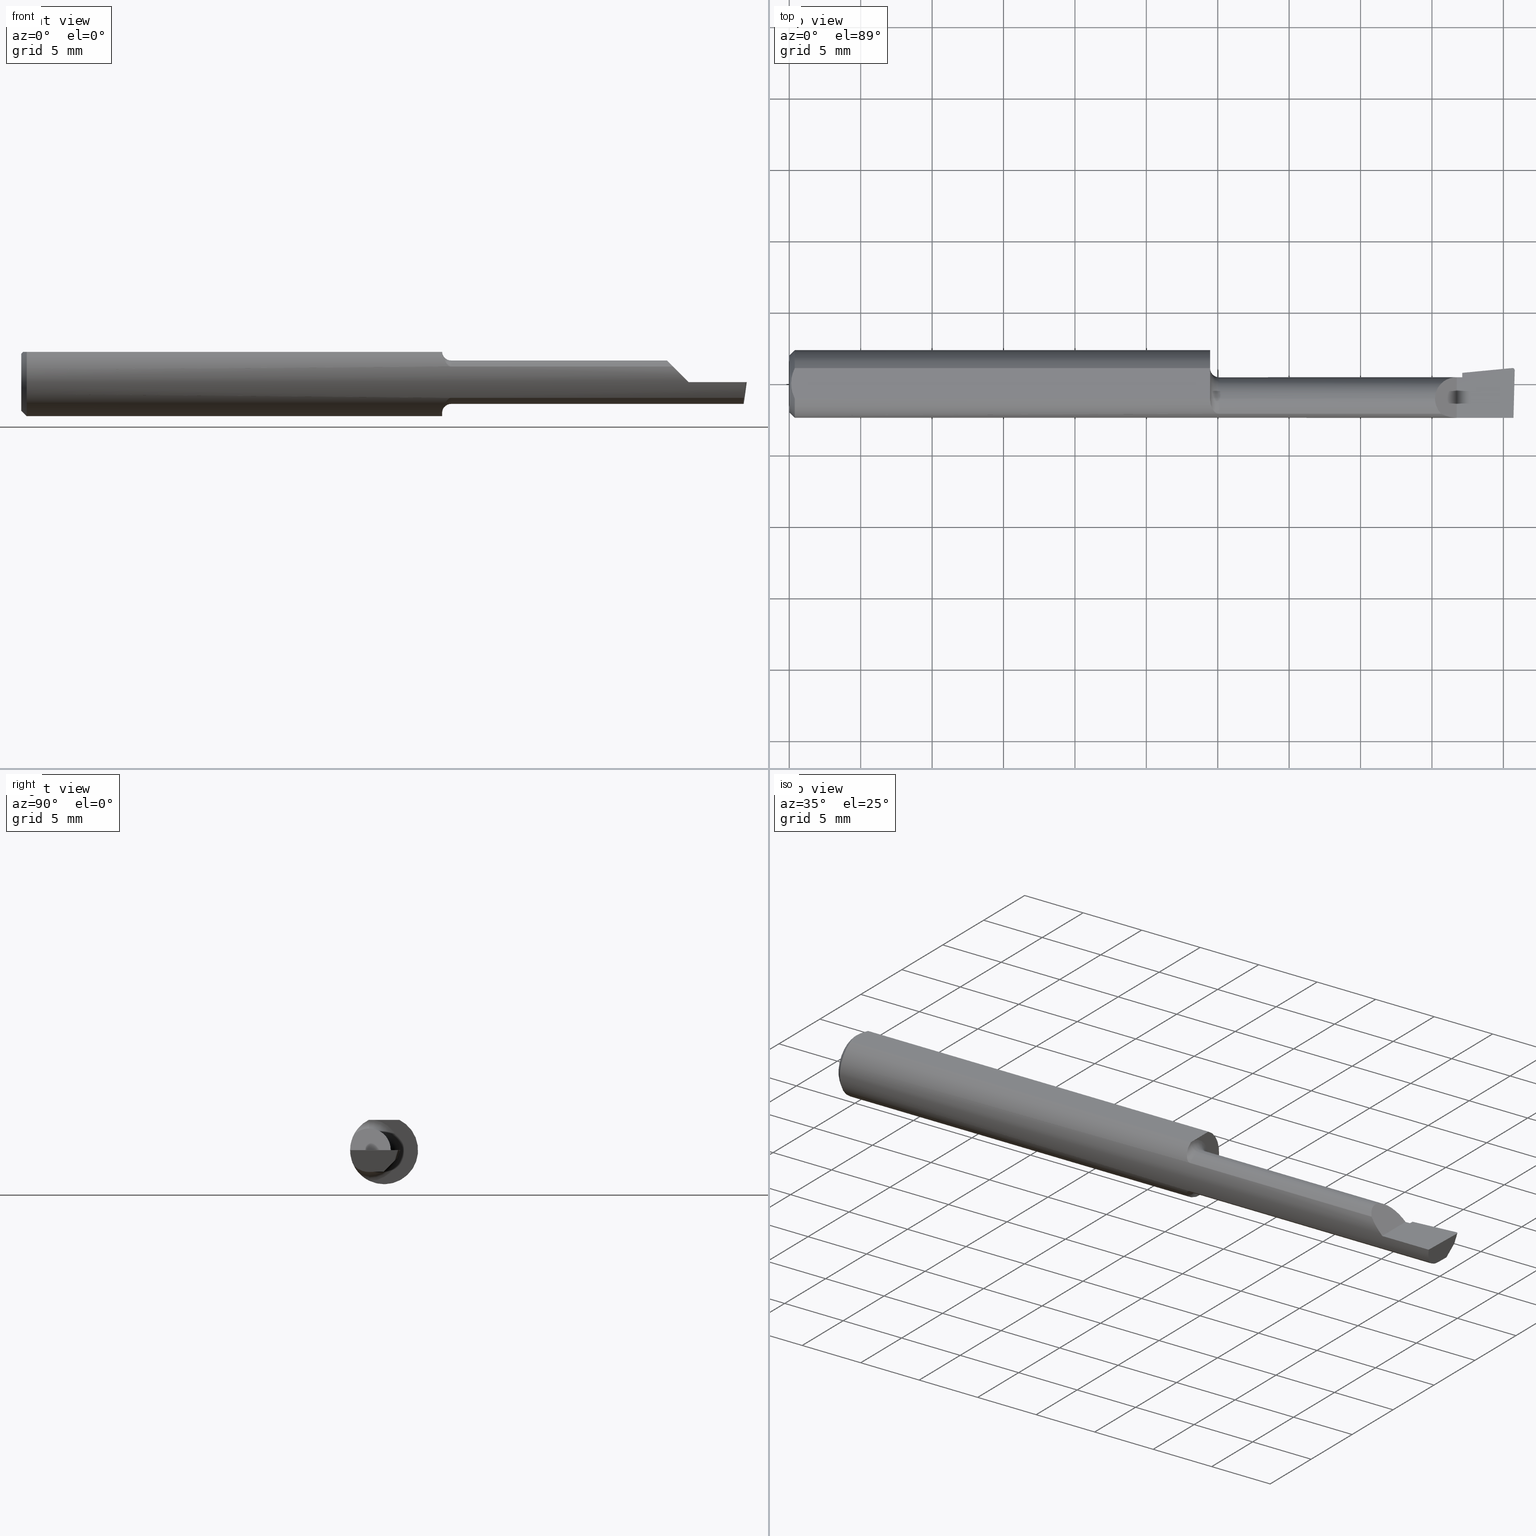
[diagram: canonical four-view strip — front | top / right | iso, engineering-drawing reading convention]
A machine part, canonical four-view strip (front | top / right | iso — engineering-drawing reading convention). The complete STEP part file that produces these views, byte-faithful:
ISO-10303-21;
HEADER;
FILE_DESCRIPTION (( 'STEP AP214' ),
    '1' );
FILE_NAME ('B140800R.STEP',
    '2020-05-08T22:41:23',
    ( '' ),
    ( '' ),
    'SwSTEP 2.0',
    'SolidWorks 2018',
    '' );
FILE_SCHEMA (( 'AUTOMOTIVE_DESIGN' ));
ENDSEC;

DATA;
#1 = CARTESIAN_POINT ( 'NONE',  ( 1.160121283746728515, -0.04659318327468391085, -0.08137765652544186323 ) ) ;
#2 = DIRECTION ( 'NONE',  ( 1.000000000000000000, 0.0000000000000000000, 0.0000000000000000000 ) ) ;
#3 = ORIENTED_EDGE ( 'NONE', *, *, #16, .F. ) ;
#4 = CARTESIAN_POINT ( 'NONE',  ( 1.160020127471513174, -0.04150000000000000216, -0.08389702020930184245 ) ) ;
#5 = CARTESIAN_POINT ( 'NONE',  ( 0.005000000000000236026, 1.025183009042025117E-17, 0.08360000000000000764 ) ) ;
#6 = AXIS2_PLACEMENT_3D ( 'NONE', #649, #427, #187 ) ;
#7 = DIRECTION ( 'NONE',  ( 0.0000000000000000000, 0.0000000000000000000, -1.000000000000000000 ) ) ;
#8 = ORIENTED_EDGE ( 'NONE', *, *, #477, .T. ) ;
#9 = ORIENTED_EDGE ( 'NONE', *, *, #90, .F. ) ;
#10 = ORIENTED_EDGE ( 'NONE', *, *, #156, .F. ) ;
#11 = EDGE_CURVE ( 'NONE', #172, #718, #533, .T. ) ;
#12 = FACE_OUTER_BOUND ( 'NONE', #637, .T. ) ;
#13 = AXIS2_PLACEMENT_3D ( 'NONE', #590, #203, #31 ) ;
#14 =( BOUNDED_CURVE ( )  B_SPLINE_CURVE ( 3, ( #478, #88, #730, #373 ),
 .UNSPECIFIED., .F., .T. ) 
 B_SPLINE_CURVE_WITH_KNOTS ( ( 4, 4 ),
 ( 3.156599629463105572, 4.715023529952367731 ),
 .UNSPECIFIED. ) 
 CURVE ( )  GEOMETRIC_REPRESENTATION_ITEM ( )  RATIONAL_B_SPLINE_CURVE ( ( 1.000000000000000000, 0.8076450242550399228, 0.8076450242550399228, 1.000000000000000000 ) ) 
 REPRESENTATION_ITEM ( '' )  );
#15 = CARTESIAN_POINT ( 'NONE',  ( 1.169277238843646760, -0.07518688180277835476, 0.05595855205935822835 ) ) ;
#16 = EDGE_CURVE ( 'NONE', #535, #49, #80, .T. ) ;
#17 = CARTESIAN_POINT ( 'NONE',  ( 1.173723886093771984, -0.07921817987516428794, 0.04991299092638442486 ) ) ;
#18 = CARTESIAN_POINT ( 'NONE',  ( 0.01499999999999999598, 0.0000000000000000000, -0.09360000000000001652 ) ) ;
#19 = ORIENTED_EDGE ( 'NONE', *, *, #391, .F. ) ;
#20 = EDGE_LOOP ( 'NONE', ( #3, #385, #159, #668, #473 ) ) ;
#21 = ORIENTED_EDGE ( 'NONE', *, *, #577, .F. ) ;
#22 = CARTESIAN_POINT ( 'NONE',  ( 1.175413575230843666, -0.08042664989327168168, 0.04791921015131045403 ) ) ;
#23 = CARTESIAN_POINT ( 'NONE',  ( 1.162429122971394557, -0.06066239981301110168, 0.07149394324226560071 ) ) ;
#24 = DIRECTION ( 'NONE',  ( 0.0000000000000000000, 1.000000000000000000, -1.189000693621284344E-16 ) ) ;
#25 = CARTESIAN_POINT ( 'NONE',  ( 1.163721006865968688, -0.06478644025721981559, 0.06776242552087052839 ) ) ;
#26 = DIMENSIONAL_EXPONENTS ( 1.000000000000000000, 0.0000000000000000000, 0.0000000000000000000, 0.0000000000000000000, 0.0000000000000000000, 0.0000000000000000000, 0.0000000000000000000 ) ;
#27 = CARTESIAN_POINT ( 'NONE',  ( 1.167169981118042932, -0.07201923175909119568, 0.06001882546754930964 ) ) ;
#28 = DIRECTION ( 'NONE',  ( 0.1219104985252699447, 0.0000000000000000000, 0.9925410975618692566 ) ) ;
#29 = CYLINDRICAL_SURFACE ( 'NONE', #70, 0.006499999999999999702 ) ;
#30 = VECTOR ( 'NONE', #445, 39.37007874015748143 ) ;
#31 = DIRECTION ( 'NONE',  ( 0.0000000000000000000, 0.0000000000000000000, 1.000000000000000000 ) ) ;
#32 = CARTESIAN_POINT ( 'NONE',  ( 1.990282674007080033, 0.03732143363315359313, -0.02000000000000000042 ) ) ;
#33 = PLANE ( 'NONE',  #383 ) ;
#34 = AXIS2_PLACEMENT_3D ( 'NONE', #606, #551, #77 ) ;
#35 = DIRECTION ( 'NONE',  ( -0.9922060308645497262, 0.02598182930468411270, 0.1218693434051345836 ) ) ;
#36 = EDGE_LOOP ( 'NONE', ( #212, #106, #322, #19 ) ) ;
#37 = CARTESIAN_POINT ( 'NONE',  ( 1.992906680581892465, 0.04371699102466924253, -6.439972649628884200E-17 ) ) ;
#38 = ORIENTED_EDGE ( 'NONE', *, *, #181, .T. ) ;
#39 =( NAMED_UNIT ( * ) SI_UNIT ( $, .STERADIAN. ) SOLID_ANGLE_UNIT ( ) );
#40 = ORIENTED_EDGE ( 'NONE', *, *, #11, .T. ) ;
#41 = CARTESIAN_POINT ( 'NONE',  ( 1.160033822879743992, -0.03903342675892667452, 0.08360000000000000764 ) ) ;
#42 = DIRECTION ( 'NONE',  ( -1.000000000000000000, -0.0000000000000000000, -0.0000000000000000000 ) ) ;
#43 = DIRECTION ( 'NONE',  ( 0.0000000000000000000, 0.0000000000000000000, -1.000000000000000000 ) ) ;
#44 = VECTOR ( 'NONE', #457, 39.37007874015748143 ) ;
#45 = DIRECTION ( 'NONE',  ( 1.000000000000000000, 0.0000000000000000000, 0.0000000000000000000 ) ) ;
#46 = EDGE_CURVE ( 'NONE', #476, #238, #648, .T. ) ;
#47 = CIRCLE ( 'NONE', #177, 0.08489999999999991998 ) ;
#48 = DIRECTION ( 'NONE',  ( 0.0000000000000000000, 0.0000000000000000000, 1.000000000000000000 ) ) ;
#49 = VERTEX_POINT ( 'NONE', #5 ) ;
#50 = VERTEX_POINT ( 'NONE', #167 ) ;
#51 = VECTOR ( 'NONE', #712, 39.37007874015748143 ) ;
#52 = AXIS2_PLACEMENT_3D ( 'NONE', #146, #628, #714 ) ;
#53 = CARTESIAN_POINT ( 'NONE',  ( 1.993512870449313912, 0.04374616680637214566, -7.256471233170699482E-17 ) ) ;
#54 = ORIENTED_EDGE ( 'NONE', *, *, #388, .F. ) ;
#55 = CARTESIAN_POINT ( 'NONE',  ( 1.993108609909222784, 0.04373643460740115479, -6.821681774272507613E-17 ) ) ;
#56 = EDGE_LOOP ( 'NONE', ( #596, #72, #727, #336, #327, #140 ) ) ;
#57 = CARTESIAN_POINT ( 'NONE',  ( 0.01499999999999999598, 0.0000000000000000000, 0.0000000000000000000 ) ) ;
#58 = ORIENTED_EDGE ( 'NONE', *, *, #435, .F. ) ;
#59 = VERTEX_POINT ( 'NONE', #249 ) ;
#60 = EDGE_CURVE ( 'NONE', #284, #654, #456, .T. ) ;
#61 = DIRECTION ( 'NONE',  ( 0.0000000000000000000, 0.0000000000000000000, 1.000000000000000000 ) ) ;
#62 = DIRECTION ( 'NONE',  ( 1.000000000000000000, 0.0000000000000000000, 0.0000000000000000000 ) ) ;
#63 = EDGE_LOOP ( 'NONE', ( #368, #709, #679, #693, #301, #582, #646 ) ) ;
#64 = VECTOR ( 'NONE', #485, 39.37007874015748143 ) ;
#65 = ORIENTED_EDGE ( 'NONE', *, *, #439, .T. ) ;
#66 = CARTESIAN_POINT ( 'NONE',  ( 1.854999999999999982, -0.04150000000000000216, 0.0000000000000000000 ) ) ;
#67 = CARTESIAN_POINT ( 'NONE',  ( 1.160000000000000142, -0.03946024096385560009, -0.08487549341873927566 ) ) ;
#68 = ORIENTED_EDGE ( 'NONE', *, *, #73, .T. ) ;
#69 = ORIENTED_EDGE ( 'NONE', *, *, #271, .T. ) ;
#70 = AXIS2_PLACEMENT_3D ( 'NONE', #295, #536, #497 ) ;
#71 =( NAMED_UNIT ( * ) PLANE_ANGLE_UNIT ( ) SI_UNIT ( $, .RADIAN. ) );
#72 = ORIENTED_EDGE ( 'NONE', *, *, #540, .T. ) ;
#73 = EDGE_CURVE ( 'NONE', #535, #594, #697, .T. ) ;
#74 = CARTESIAN_POINT ( 'NONE',  ( 5.659797890829555466E-31, -0.09359999999999998876, 1.030335658007946046E-15 ) ) ;
#75 = VERTEX_POINT ( 'NONE', #37 ) ;
#76 = CARTESIAN_POINT ( 'NONE',  ( 1.995722974169268138, 0.02705373335152997522, -0.03112352112763103890 ) ) ;
#77 = DIRECTION ( 'NONE',  ( 0.0000000000000000000, 0.0000000000000000000, 1.000000000000000000 ) ) ;
#78 = CARTESIAN_POINT ( 'NONE',  ( 1.988104162047463319, -0.07253870183878466382, -0.07191998023054102518 ) ) ;
#79 = VECTOR ( 'NONE', #516, 39.37007874015748143 ) ;
#80 = LINE ( 'NONE', #89, #698 ) ;
#81 = SURFACE_STYLE_USAGE ( .BOTH. , #618 ) ;
#82 =( CONVERSION_BASED_UNIT ( 'INCH', #512 ) LENGTH_UNIT ( ) NAMED_UNIT ( #26 ) );
#83 = AXIS2_PLACEMENT_3D ( 'NONE', #353, #346, #43 ) ;
#84 = PLANE ( 'NONE',  #715 ) ;
#85 = PRODUCT ( 'B140800R', 'B140800R', '', ( #424 ) ) ;
#86 = DIRECTION ( 'NONE',  ( -0.7071067811865433539, 0.0000000000000000000, -0.7071067811865516806 ) ) ;
#87 =( CONVERSION_BASED_UNIT ( 'INCH', #132 ) LENGTH_UNIT ( ) NAMED_UNIT ( #603 ) );
#88 = CARTESIAN_POINT ( 'NONE',  ( 1.994610376530254747, 0.03716006620332604204, -0.02059586115756896138 ) ) ;
#89 = CARTESIAN_POINT ( 'NONE',  ( 0.01499999999999999598, 1.146269404001922775E-17, 0.09360000000000001652 ) ) ;
#90 = EDGE_CURVE ( 'NONE', #729, #519, #653, .T. ) ;
#91 = CARTESIAN_POINT ( 'NONE',  ( 1.991365359011875169, -0.08307469879518081246, -0.04312255117789283443 ) ) ;
#92 = CARTESIAN_POINT ( 'NONE',  ( 1.840000000000000080, -0.2500000000000000555, 1.959434878635762025E-17 ) ) ;
#93 =( NAMED_UNIT ( * ) SI_UNIT ( $, .STERADIAN. ) SOLID_ANGLE_UNIT ( ) );
#94 = ORIENTED_EDGE ( 'NONE', *, *, #642, .F. ) ;
#95 = DIRECTION ( 'NONE',  ( 0.0000000000000000000, 0.0000000000000000000, 1.000000000000000000 ) ) ;
#96 = LINE ( 'NONE', #200, #30 ) ;
#97 = LINE ( 'NONE', #370, #79 ) ;
#98 = CARTESIAN_POINT ( 'NONE',  ( 1.520000000000000240, -0.08307469879518081246, 0.04312255117789283443 ) ) ;
#99 = CARTESIAN_POINT ( 'NONE',  ( 0.01499999999999999944, -0.04209513035969835587, 0.08360000000000000764 ) ) ;
#100 = AXIS2_PLACEMENT_3D ( 'NONE', #362, #481, #229 ) ;
#101 = CARTESIAN_POINT ( 'NONE',  ( 1.993310817358676212, 0.04374616680637213179, -6.832789351565719796E-17 ) ) ;
#102 = LENGTH_MEASURE_WITH_UNIT ( LENGTH_MEASURE( 0.02539999999999999897 ), #548 );
#103 = FACE_OUTER_BOUND ( 'NONE', #349, .T. ) ;
#104 = AXIS2_PLACEMENT_3D ( 'NONE', #571, #517, #274 ) ;
#105 = ORIENTED_EDGE ( 'NONE', *, *, #453, .T. ) ;
#106 = ORIENTED_EDGE ( 'NONE', *, *, #375, .F. ) ;
#107 = EDGE_CURVE ( 'NONE', #286, #59, #553, .T. ) ;
#108 = CARTESIAN_POINT ( 'NONE',  ( 1.185000000000000053, -0.08307469879518070144, -0.04312255117789289688 ) ) ;
#109 = B_SPLINE_CURVE_WITH_KNOTS ( 'NONE', 3,
 ( #431, #308, #626, #570, #573, #444 ),
 .UNSPECIFIED., .F., .F.,
 ( 4, 2, 4 ),
 ( 0.005785415439423114564, 0.006333348270144337384, 0.006881281100865560205 ),
 .UNSPECIFIED. ) ;
#110 = CARTESIAN_POINT ( 'NONE',  ( 2.000000000000000000, -0.04150000000000000216, -0.05990000000000000185 ) ) ;
#111 = CLOSED_SHELL ( 'NONE', ( #662, #479, #659, #720, #493, #280, #532, #425, #557, #345, #609, #334, #463, #670, #405, #549, #126, #430, #468, #472, #537 ) ) ;
#112 = AXIS2_PLACEMENT_3D ( 'NONE', #234, #565, #657 ) ;
#113 = ORIENTED_EDGE ( 'NONE', *, *, #524, .T. ) ;
#114 = CARTESIAN_POINT ( 'NONE',  ( 1.160033822879743992, -0.04150000000000000216, 0.08360000000000000764 ) ) ;
#115 = EDGE_CURVE ( 'NONE', #49, #231, #531, .T. ) ;
#116 = VECTOR ( 'NONE', #461, 39.37007874015748143 ) ;
#117 = VERTEX_POINT ( 'NONE', #619 ) ;
#118 = EDGE_CURVE ( 'NONE', #231, #527, #681, .T. ) ;
#119 = PLANE ( 'NONE',  #100 ) ;
#120 = PLANE ( 'NONE',  #488 ) ;
#121 = ORIENTED_EDGE ( 'NONE', *, *, #194, .F. ) ;
#122 = ORIENTED_EDGE ( 'NONE', *, *, #115, .T. ) ;
#123 = ORIENTED_EDGE ( 'NONE', *, *, #73, .F. ) ;
#124 = DIRECTION ( 'NONE',  ( -1.000000000000000000, -0.0000000000000000000, -0.0000000000000000000 ) ) ;
#125 = CARTESIAN_POINT ( 'NONE',  ( 1.182123707331576901, -0.08307469879541805324, 0.04312255117743588051 ) ) ;
#126 = ADVANCED_FACE ( 'NONE', ( #623 ), #316, .F. ) ;
#127 = DIRECTION ( 'NONE',  ( -1.000000000000000000, -0.0000000000000000000, -0.0000000000000000000 ) ) ;
#128 = STYLED_ITEM ( 'NONE', ( #543 ), #406 ) ;
#129 = ORIENTED_EDGE ( 'NONE', *, *, #495, .F. ) ;
#130 = DIRECTION ( 'NONE',  ( -1.000000000000000000, -0.0000000000000000000, -0.0000000000000000000 ) ) ;
#131 = VERTEX_POINT ( 'NONE', #147 ) ;
#132 = LENGTH_MEASURE_WITH_UNIT ( LENGTH_MEASURE( 0.02539999999999999897 ), #666 );
#133 = DIRECTION ( 'NONE',  ( 0.1240019227989196809, 0.3022330132596642849, 0.9451342385281332747 ) ) ;
#134 = CARTESIAN_POINT ( 'NONE',  ( 1.780099999999999349, -0.04150000000000000216, 0.05989999999999996022 ) ) ;
#135 = CARTESIAN_POINT ( 'NONE',  ( 1.163605992736884476, -0.06448586599545322318, -0.06805619079784644421 ) ) ;
#136 = CARTESIAN_POINT ( 'NONE',  ( 1.992827658777091893, -0.09002356847881788637, -0.02973569812382164182 ) ) ;
#137 =( GEOMETRIC_REPRESENTATION_CONTEXT ( 3 ) GLOBAL_UNCERTAINTY_ASSIGNED_CONTEXT ( ( #576 ) ) GLOBAL_UNIT_ASSIGNED_CONTEXT ( ( #82, #71, #39 ) ) REPRESENTATION_CONTEXT ( 'NONE', 'WORKASPACE' ) );
#138 = DIRECTION ( 'NONE',  ( 0.0000000000000000000, -0.2936076258024065688, -0.9559260233253794592 ) ) ;
#139 = DIRECTION ( 'NONE',  ( 0.7071067811865391350, 8.659560562355035164E-17, 0.7071067811865558994 ) ) ;
#140 = ORIENTED_EDGE ( 'NONE', *, *, #410, .T. ) ;
#141 = EDGE_LOOP ( 'NONE', ( #94, #54, #220, #272 ) ) ;
#142 = ORIENTED_EDGE ( 'NONE', *, *, #304, .T. ) ;
#143 = CARTESIAN_POINT ( 'NONE',  ( 0.0000000000000000000, -0.04150000000000000216, 0.05989999999999996022 ) ) ;
#144 = ORIENTED_EDGE ( 'NONE', *, *, #410, .F. ) ;
#145 = AXIS2_PLACEMENT_3D ( 'NONE', #192, #392, #45 ) ;
#146 = CARTESIAN_POINT ( 'NONE',  ( 0.0000000000000000000, -0.04150000000000000216, 0.0000000000000000000 ) ) ;
#147 = CARTESIAN_POINT ( 'NONE',  ( 1.996386342823452065, -0.09360000000000009979, -6.634435288474564624E-17 ) ) ;
#148 = EDGE_CURVE ( 'NONE', #323, #49, #109, .T. ) ;
#149 = FACE_OUTER_BOUND ( 'NONE', #699, .T. ) ;
#150 = CARTESIAN_POINT ( 'NONE',  ( 1.185000000000000053, -0.04150000000000000216, 0.05989999999999991859 ) ) ;
#151 = DIRECTION ( 'NONE',  ( 0.0000000000000000000, 0.0000000000000000000, 1.000000000000000000 ) ) ;
#152 = ORIENTED_EDGE ( 'NONE', *, *, #309, .F. ) ;
#153 = LINE ( 'NONE', #143, #64 ) ;
#154 = CARTESIAN_POINT ( 'NONE',  ( 1.182100790213033825, -0.08307469879518074307, -0.04312255117789293851 ) ) ;
#155 = DIRECTION ( 'NONE',  ( -0.1240019227989196809, -0.3022330132596642849, -0.9451342385281332747 ) ) ;
#156 = EDGE_CURVE ( 'NONE', #117, #75, #97, .T. ) ;
#157 = CARTESIAN_POINT ( 'NONE',  ( 1.990707973439665102, 0.03690972059671232541, -0.02137873461577839695 ) ) ;
#158 = CARTESIAN_POINT ( 'NONE',  ( 1.804911392386147506, 0.01839999999999995459, 0.03508860761385158150 ) ) ;
#159 = ORIENTED_EDGE ( 'NONE', *, *, #640, .T. ) ;
#160 = EDGE_CURVE ( 'NONE', #283, #164, #178, .T. ) ;
#161 = ORIENTED_EDGE ( 'NONE', *, *, #419, .F. ) ;
#162 = VERTEX_POINT ( 'NONE', #366 ) ;
#163 = CARTESIAN_POINT ( 'NONE',  ( 0.005000000000000223883, 0.007308422719211823959, 0.08360000000000000764 ) ) ;
#164 = VERTEX_POINT ( 'NONE', #361 ) ;
#165 = LINE ( 'NONE', #182, #354 ) ;
#166 = CIRCLE ( 'NONE', #216, 0.05989999999999991859 ) ;
#167 = CARTESIAN_POINT ( 'NONE',  ( 1.840000000000000080, 0.01839999999999986438, 1.959434878635762025E-17 ) ) ;
#168 = AXIS2_PLACEMENT_3D ( 'NONE', #656, #258, #412 ) ;
#169 = CARTESIAN_POINT ( 'NONE',  ( 0.005000000000000236026, 1.025183009042025117E-17, 0.08360000000000000764 ) ) ;
#170 = DIRECTION ( 'NONE',  ( 0.0000000000000000000, 0.0000000000000000000, 1.000000000000000000 ) ) ;
#171 = AXIS2_PLACEMENT_3D ( 'NONE', #669, #436, #170 ) ;
#172 = VERTEX_POINT ( 'NONE', #446 ) ;
#173 = ORIENTED_EDGE ( 'NONE', *, *, #640, .F. ) ;
#174 = ORIENTED_EDGE ( 'NONE', *, *, #291, .T. ) ;
#175 = CARTESIAN_POINT ( 'NONE',  ( 1.185000000000000053, -0.08307469879518036837, 0.04312255117789319525 ) ) ;
#176 = PLANE ( 'NONE',  #647 ) ;
#177 = AXIS2_PLACEMENT_3D ( 'NONE', #643, #513, #607 ) ;
#178 = LINE ( 'NONE', #380, #420 ) ;
#179 = DIRECTION ( 'NONE',  ( 0.0000000000000000000, 0.9524855432518773979, -0.3045837978228257970 ) ) ;
#180 = FACE_OUTER_BOUND ( 'NONE', #433, .T. ) ;
#181 = EDGE_CURVE ( 'NONE', #729, #284, #400, .T. ) ;
#182 = CARTESIAN_POINT ( 'NONE',  ( 0.01499999999999999598, 0.0000000000000000000, -0.09360000000000001652 ) ) ;
#183 = DIRECTION ( 'NONE',  ( 0.0000000000000000000, 1.000000000000000000, 0.0000000000000000000 ) ) ;
#184 = ORIENTED_EDGE ( 'NONE', *, *, #267, .F. ) ;
#185 = CARTESIAN_POINT ( 'NONE',  ( 1.160033712670299977, -0.04209513036081732190, 0.08360000000000000764 ) ) ;
#186 = VERTEX_POINT ( 'NONE', #150 ) ;
#187 = DIRECTION ( 'NONE',  ( 0.0000000000000000000, 0.0000000000000000000, -1.000000000000000000 ) ) ;
#188 = DIMENSIONAL_EXPONENTS ( 1.000000000000000000, 0.0000000000000000000, 0.0000000000000000000, 0.0000000000000000000, 0.0000000000000000000, 0.0000000000000000000, 0.0000000000000000000 ) ;
#189 =( BOUNDED_CURVE ( )  B_SPLINE_CURVE ( 3, ( #357, #292, #423, #378 ),
 .UNSPECIFIED., .F., .T. ) 
 B_SPLINE_CURVE_WITH_KNOTS ( ( 4, 4 ),
 ( 1.953092279228458183, 3.511516179717707686 ),
 .UNSPECIFIED. ) 
 CURVE ( )  GEOMETRIC_REPRESENTATION_ITEM ( )  RATIONAL_B_SPLINE_CURVE ( ( 1.000000000000000000, 0.8076450242550429204, 0.8076450242550429204, 1.000000000000000000 ) ) 
 REPRESENTATION_ITEM ( '' )  );
#190 = AXIS2_PLACEMENT_3D ( 'NONE', #256, #253, #193 ) ;
#191 = DIRECTION ( 'NONE',  ( -0.1240019227989196671, -0.3022330132596642849, -0.9451342385281333858 ) ) ;
#192 = CARTESIAN_POINT ( 'NONE',  ( 2.000000000000000000, -0.04150000000000000216, -0.05990000000000000185 ) ) ;
#193 = DIRECTION ( 'NONE',  ( 0.0000000000000000000, 0.0000000000000000000, 1.000000000000000000 ) ) ;
#194 = EDGE_CURVE ( 'NONE', #186, #162, #255, .T. ) ;
#195 = ORIENTED_EDGE ( 'NONE', *, *, #523, .T. ) ;
#196 = CARTESIAN_POINT ( 'NONE',  ( 1.167076397983111580, -0.07187891021191479546, -0.06019546731975692483 ) ) ;
#197 = EDGE_CURVE ( 'NONE', #238, #610, #47, .T. ) ;
#198 = DIRECTION ( 'NONE',  ( 0.0000000000000000000, 0.0000000000000000000, 1.000000000000000000 ) ) ;
#199 = CARTESIAN_POINT ( 'NONE',  ( 0.0000000000000000000, -0.04209513035969835587, 0.08360000000000000764 ) ) ;
#200 = CARTESIAN_POINT ( 'NONE',  ( 0.0000000000000000000, 0.04209513035969837669, 0.08360000000000000764 ) ) ;
#201 = CARTESIAN_POINT ( 'NONE',  ( 0.005981829149300850468, 0.01454044632356567279, 0.08360000000000000764 ) ) ;
#202 = ORIENTED_EDGE ( 'NONE', *, *, #540, .F. ) ;
#203 = DIRECTION ( 'NONE',  ( -0.0000000000000000000, 1.000000000000000000, 1.224646799147353207E-16 ) ) ;
#204 = CARTESIAN_POINT ( 'NONE',  ( 0.009492654797564337166, 0.02859466010166625619, 0.08359999999999997988 ) ) ;
#205 = PRESENTATION_LAYER_ASSIGNMENT (  '', '', ( #128 ) ) ;
#206 = CARTESIAN_POINT ( 'NONE',  ( 1.179498465877714120, -0.08233174416856384181, -0.04456779206614402966 ) ) ;
#207 = CARTESIAN_POINT ( 'NONE',  ( 1.840000000000000080, -0.09360000000000005815, 1.959434878635762025E-17 ) ) ;
#208 = CARTESIAN_POINT ( 'NONE',  ( 0.01203648650249650523, 0.03550565407121123590, 0.08360000000000000764 ) ) ;
#209 = CARTESIAN_POINT ( 'NONE',  ( 1.846299648997745013, 0.02345744519840431766, -0.02000000000000000042 ) ) ;
#210 = EDGE_LOOP ( 'NONE', ( #360, #711, #9, #38, #614 ) ) ;
#211 = ORIENTED_EDGE ( 'NONE', *, *, #388, .T. ) ;
#212 = ORIENTED_EDGE ( 'NONE', *, *, #107, .F. ) ;
#213 = CARTESIAN_POINT ( 'NONE',  ( 0.01499999999999999598, 0.04209513035969837669, 0.08360000000000000764 ) ) ;
#214 = CARTESIAN_POINT ( 'NONE',  ( 1.992906680581892465, 0.04371699102466924253, -6.439972649628884200E-17 ) ) ;
#215 = LINE ( 'NONE', #209, #242 ) ;
#216 = AXIS2_PLACEMENT_3D ( 'NONE', #563, #629, #151 ) ;
#217 = DIRECTION ( 'NONE',  ( 0.0000000000000000000, -1.000000000000000000, 1.189000693621284344E-16 ) ) ;
#218 = EDGE_CURVE ( 'NONE', #162, #284, #166, .T. ) ;
#219 = FACE_OUTER_BOUND ( 'NONE', #227, .T. ) ;
#220 = ORIENTED_EDGE ( 'NONE', *, *, #435, .T. ) ;
#221 = AXIS2_PLACEMENT_3D ( 'NONE', #296, #191, #179 ) ;
#222 = CARTESIAN_POINT ( 'NONE',  ( 1.796877448822106649, -0.08307469879518082634, 0.04312255117789279973 ) ) ;
#223 = EDGE_CURVE ( 'NONE', #75, #547, #314, .T. ) ;
#224 = EDGE_CURVE ( 'NONE', #50, #440, #724, .T. ) ;
#225 = FILL_AREA_STYLE_COLOUR ( '', #631 ) ;
#226 = LINE ( 'NONE', #443, #382 ) ;
#227 = EDGE_LOOP ( 'NONE', ( #252, #195, #508 ) ) ;
#228 = FACE_OUTER_BOUND ( 'NONE', #20, .T. ) ;
#229 = DIRECTION ( 'NONE',  ( 0.0000000000000000000, 0.0000000000000000000, -1.000000000000000000 ) ) ;
#230 = CARTESIAN_POINT ( 'NONE',  ( 0.0000000000000000000, 1.054420894065869177E-17, 0.07859999999999965625 ) ) ;
#231 = VERTEX_POINT ( 'NONE', #636 ) ;
#232 = VECTOR ( 'NONE', #297, 39.37007874015748143 ) ;
#233 = CARTESIAN_POINT ( 'NONE',  ( 1.845713589253086706, 0.02954390835936730741, -6.829619984160658046E-17 ) ) ;
#234 = CARTESIAN_POINT ( 'NONE',  ( 0.0000000000000000000, 0.0000000000000000000, 0.0000000000000000000 ) ) ;
#235 = MECHANICAL_DESIGN_GEOMETRIC_PRESENTATION_REPRESENTATION (  '', ( #128 ), #276 ) ;
#236 = CARTESIAN_POINT ( 'NONE',  ( 1.840000000000000080, -0.09360000000000005815, 1.959434878635762025E-17 ) ) ;
#237 =( BOUNDED_CURVE ( )  B_SPLINE_CURVE ( 3, ( #365, #489, #414, #494 ),
 .UNSPECIFIED., .F., .T. ) 
 B_SPLINE_CURVE_WITH_KNOTS ( ( 4, 4 ),
 ( 3.064097098354582549, 3.156599629463105572 ),
 .UNSPECIFIED. ) 
 CURVE ( )  GEOMETRIC_REPRESENTATION_ITEM ( )  RATIONAL_B_SPLINE_CURVE ( ( 1.000000000000000000, 0.9992870672494019724, 0.9992870672494019724, 1.000000000000000000 ) ) 
 REPRESENTATION_ITEM ( '' )  );
#238 = VERTEX_POINT ( 'NONE', #331 ) ;
#239 = CARTESIAN_POINT ( 'NONE',  ( 0.0000000000000000000, 0.0000000000000000000, -0.07859999999999965625 ) ) ;
#240 = SHAPE_DEFINITION_REPRESENTATION ( #376, #684 ) ;
#241 = DIRECTION ( 'NONE',  ( 0.0000000000000000000, -1.189000693621284344E-16, -1.000000000000000000 ) ) ;
#242 = VECTOR ( 'NONE', #266, 39.37007874015748854 ) ;
#243 = SURFACE_SIDE_STYLE ('',( #466 ) ) ;
#244 = STYLED_ITEM ( 'NONE', ( #299 ), #684 ) ;
#245 = FILL_AREA_STYLE ('',( #315 ) ) ;
#246 = FACE_OUTER_BOUND ( 'NONE', #471, .T. ) ;
#247 = CARTESIAN_POINT ( 'NONE',  ( 1.160000000000000142, 0.1436000000000000332, 0.08359999999999999376 ) ) ;
#248 = APPLICATION_CONTEXT ( 'automotive_design' ) ;
#249 = CARTESIAN_POINT ( 'NONE',  ( 1.990883086864199569, 0.03733652896197534043, -0.02004403198038586659 ) ) ;
#250 = AXIS2_PLACEMENT_3D ( 'NONE', #674, #502, #434 ) ;
#251 = ORIENTED_EDGE ( 'NONE', *, *, #194, .T. ) ;
#252 = ORIENTED_EDGE ( 'NONE', *, *, #60, .T. ) ;
#253 = DIRECTION ( 'NONE',  ( -1.000000000000000000, -0.0000000000000000000, -0.0000000000000000000 ) ) ;
#254 = EDGE_CURVE ( 'NONE', #689, #705, #583, .T. ) ;
#255 = CIRCLE ( 'NONE', #104, 0.05989999999999991859 ) ;
#256 = CARTESIAN_POINT ( 'NONE',  ( 0.0000000000000000000, 0.0000000000000000000, 0.0000000000000000000 ) ) ;
#257 = DIRECTION ( 'NONE',  ( -0.02617694830786384055, -0.9996573249755575929, 0.0000000000000000000 ) ) ;
#258 = DIRECTION ( 'NONE',  ( -1.000000000000000000, 0.0000000000000000000, -0.0000000000000000000 ) ) ;
#259 = LINE ( 'NONE', #454, #422 ) ;
#260 = CARTESIAN_POINT ( 'NONE',  ( 1.160033804492674347, -0.04179756391388078640, 0.08360000000000000764 ) ) ;
#261 = B_SPLINE_CURVE_WITH_KNOTS ( 'NONE', 3,
 ( #568, #544, #511, #602, #41, #426 ),
 .UNSPECIFIED., .F., .F.,
 ( 4, 2, 4 ),
 ( 0.0007618363005527917491, 0.0009495817850258247419, 0.001137327269498857735 ),
 .UNSPECIFIED. ) ;
#262 = CARTESIAN_POINT ( 'NONE',  ( 1.169237437666585722, -0.07513599091569005128, -0.05602756047418846336 ) ) ;
#263 = LINE ( 'NONE', #721, #298 ) ;
#264 = CARTESIAN_POINT ( 'NONE',  ( 1.840000000000000080, 0.01839999999999986438, 1.959434878635762025E-17 ) ) ;
#265 = DIRECTION ( 'NONE',  ( 0.0000000000000000000, 1.000000000000000000, 0.0000000000000000000 ) ) ;
#266 = DIRECTION ( 'NONE',  ( 0.9953961983671800740, 0.09584575252021028391, -0.0000000000000000000 ) ) ;
#267 = EDGE_CURVE ( 'NONE', #440, #117, #263, .T. ) ;
#268 = VECTOR ( 'NONE', #677, 39.37007874015748143 ) ;
#269 = ORIENTED_EDGE ( 'NONE', *, *, #611, .T. ) ;
#270 = CARTESIAN_POINT ( 'NONE',  ( 1.854999999999999982, 0.02429519371539582209, -0.02000000000000000042 ) ) ;
#271 = EDGE_CURVE ( 'NONE', #164, #519, #586, .T. ) ;
#272 = ORIENTED_EDGE ( 'NONE', *, *, #342, .F. ) ;
#273 = EDGE_LOOP ( 'NONE', ( #458, #68 ) ) ;
#274 = DIRECTION ( 'NONE',  ( 0.0000000000000000000, 0.0000000000000000000, 1.000000000000000000 ) ) ;
#275 = VECTOR ( 'NONE', #615, 39.37007874015748854 ) ;
#276 =( GEOMETRIC_REPRESENTATION_CONTEXT ( 3 ) GLOBAL_UNCERTAINTY_ASSIGNED_CONTEXT ( ( #293 ) ) GLOBAL_UNIT_ASSIGNED_CONTEXT ( ( #348, #282, #93 ) ) REPRESENTATION_CONTEXT ( 'NONE', 'WORKASPACE' ) );
#277 = TOROIDAL_SURFACE ( 'NONE', #574, 0.08489999999999991998, 0.02499999999999993894 ) ;
#278 = CARTESIAN_POINT ( 'NONE',  ( 1.854999999999999982, 0.03043808801135869033, -6.049254294211750709E-16 ) ) ;
#279 = SURFACE_STYLE_USAGE ( .BOTH. , #243 ) ;
#280 = ADVANCED_FACE ( 'NONE', ( #630 ), #401, .T. ) ;
#281 = PRESENTATION_LAYER_ASSIGNMENT (  '', '', ( #244 ) ) ;
#282 =( NAMED_UNIT ( * ) PLANE_ANGLE_UNIT ( ) SI_UNIT ( $, .RADIAN. ) );
#283 = VERTEX_POINT ( 'NONE', #455 ) ;
#284 = VERTEX_POINT ( 'NONE', #687 ) ;
#285 = ORIENTED_EDGE ( 'NONE', *, *, #375, .T. ) ;
#286 = VERTEX_POINT ( 'NONE', #53 ) ;
#287 = CARTESIAN_POINT ( 'NONE',  ( 2.000000000000000000, 0.1436000000000000332, 0.08359999999999999376 ) ) ;
#288 = DIRECTION ( 'NONE',  ( 1.000000000000000000, 0.0000000000000000000, 0.0000000000000000000 ) ) ;
#289 = AXIS2_PLACEMENT_3D ( 'NONE', #57, #2, #7 ) ;
#290 = DIRECTION ( 'NONE',  ( -1.000000000000000000, -0.0000000000000000000, -0.0000000000000000000 ) ) ;
#291 = EDGE_CURVE ( 'NONE', #131, #393, #259, .T. ) ;
#292 = CARTESIAN_POINT ( 'NONE',  ( 1.999910038027503445, 0.04096449087509793779, -7.195295054753366378E-17 ) ) ;
#293 = UNCERTAINTY_MEASURE_WITH_UNIT (LENGTH_MEASURE( 1.000000000000000082E-05 ), #348, 'distance_accuracy_value', 'NONE');
#294 = FACE_OUTER_BOUND ( 'NONE', #685, .T. ) ;
#295 = CARTESIAN_POINT ( 'NONE',  ( 1.990707973439665102, 0.03071856456557512174, -0.01939893992993002927 ) ) ;
#296 = CARTESIAN_POINT ( 'NONE',  ( 1.990707973439665102, 0.03071856456557512174, -0.01939893992993002927 ) ) ;
#297 = DIRECTION ( 'NONE',  ( -1.000000000000000000, 5.691349986800549142E-18, -0.0000000000000000000 ) ) ;
#298 = VECTOR ( 'NONE', #265, 39.37007874015748143 ) ;
#299 = PRESENTATION_STYLE_ASSIGNMENT (( #279 ) ) ;
#300 = DIRECTION ( 'NONE',  ( 0.0000000000000000000, 0.0000000000000000000, 1.000000000000000000 ) ) ;
#301 = ORIENTED_EDGE ( 'NONE', *, *, #148, .F. ) ;
#302 = CARTESIAN_POINT ( 'NONE',  ( 0.01499999999999999598, 0.0000000000000000000, 0.0000000000000000000 ) ) ;
#303 = CARTESIAN_POINT ( 'NONE',  ( 1.160033822879743992, -0.04159918775988086237, 0.08360000000000000764 ) ) ;
#304 = EDGE_CURVE ( 'NONE', #654, #610, #702, .T. ) ;
#305 = ORIENTED_EDGE ( 'NONE', *, *, #439, .F. ) ;
#306 = ORIENTED_EDGE ( 'NONE', *, *, #16, .T. ) ;
#307 = DIRECTION ( 'NONE',  ( -1.000000000000000000, -0.0000000000000000000, -0.0000000000000000000 ) ) ;
#308 = CARTESIAN_POINT ( 'NONE',  ( 0.01206089165507025739, -0.03555991978469312531, 0.08360000000000000764 ) ) ;
#309 = EDGE_CURVE ( 'NONE', #333, #547, #215, .T. ) ;
#310 =( LENGTH_UNIT ( ) NAMED_UNIT ( * ) SI_UNIT ( $, .METRE. ) );
#311 = CARTESIAN_POINT ( 'NONE',  ( 1.160604804002113077, -0.05145819953596708629, -0.07838465384289883264 ) ) ;
#312 = CARTESIAN_POINT ( 'NONE',  ( 1.994631740690216315, 0.01982467021885800720, -0.03846666526582378370 ) ) ;
#313 = LINE ( 'NONE', #312, #275 ) ;
#314 = LINE ( 'NONE', #528, #116 ) ;
#315 = FILL_AREA_STYLE_COLOUR ( '', #703 ) ;
#316 = PLANE ( 'NONE',  #145 ) ;
#317 = CARTESIAN_POINT ( 'NONE',  ( 1.173672693420809487, -0.07917899622880043842, -0.04997532113045963925 ) ) ;
#318 = CARTESIAN_POINT ( 'NONE',  ( 1.185000000000000053, -0.04150000000000000216, 0.0000000000000000000 ) ) ;
#319 = CARTESIAN_POINT ( 'NONE',  ( 0.01499999999999999598, 0.0000000000000000000, 0.0000000000000000000 ) ) ;
#320 = PLANE ( 'NONE',  #624 ) ;
#321 = CARTESIAN_POINT ( 'NONE',  ( 1.993512870449313912, 0.04374616680637214566, -7.256471233170699482E-17 ) ) ;
#322 = ORIENTED_EDGE ( 'NONE', *, *, #708, .F. ) ;
#323 = VERTEX_POINT ( 'NONE', #99 ) ;
#324 = ORIENTED_EDGE ( 'NONE', *, *, #329, .F. ) ;
#325 = ORIENTED_EDGE ( 'NONE', *, *, #118, .T. ) ;
#326 = MECHANICAL_DESIGN_GEOMETRIC_PRESENTATION_REPRESENTATION (  '', ( #244 ), #364 ) ;
#327 = ORIENTED_EDGE ( 'NONE', *, *, #160, .F. ) ;
#328 = CIRCLE ( 'NONE', #112, 0.07859999999999965625 ) ;
#329 = EDGE_CURVE ( 'NONE', #286, #75, #634, .T. ) ;
#330 = CYLINDRICAL_SURFACE ( 'NONE', #34, 0.05989999999999996022 ) ;
#331 = CARTESIAN_POINT ( 'NONE',  ( 1.160000000000000142, -0.02669966216601849310, 0.08360000000000000764 ) ) ;
#332 = FACE_OUTER_BOUND ( 'NONE', #566, .T. ) ;
#333 = VERTEX_POINT ( 'NONE', #270 ) ;
#334 = ADVANCED_FACE ( 'NONE', ( #228 ), #526, .T. ) ;
#335 = AXIS2_PLACEMENT_3D ( 'NONE', #719, #505, #632 ) ;
#336 = ORIENTED_EDGE ( 'NONE', *, *, #597, .T. ) ;
#337 = ORIENTED_EDGE ( 'NONE', *, *, #46, .T. ) ;
#338 = CARTESIAN_POINT ( 'NONE',  ( 1.796877448822106649, -0.08307469879518082634, 0.04312255117789279973 ) ) ;
#339 = ORIENTED_EDGE ( 'NONE', *, *, #651, .F. ) ;
#340 = ORIENTED_EDGE ( 'NONE', *, *, #197, .T. ) ;
#341 = LINE ( 'NONE', #110, #232 ) ;
#342 = EDGE_CURVE ( 'NONE', #350, #50, #522, .T. ) ;
#343 = EDGE_CURVE ( 'NONE', #527, #323, #578, .T. ) ;
#344 = CARTESIAN_POINT ( 'NONE',  ( 1.160163936266329632, -0.04714148439379606259, 0.08105900800344767454 ) ) ;
#345 = ADVANCED_FACE ( 'NONE', ( #562 ), #320, .F. ) ;
#346 = DIRECTION ( 'NONE',  ( 0.0000000000000000000, -1.000000000000000000, 0.0000000000000000000 ) ) ;
#347 = DIRECTION ( 'NONE',  ( 1.000000000000000000, 0.0000000000000000000, 0.0000000000000000000 ) ) ;
#348 =( CONVERSION_BASED_UNIT ( 'INCH', #102 ) LENGTH_UNIT ( ) NAMED_UNIT ( #188 ) );
#349 = EDGE_LOOP ( 'NONE', ( #144, #129, #21, #486, #459 ) ) ;
#350 = VERTEX_POINT ( 'NONE', #134 ) ;
#351 = DIRECTION ( 'NONE',  ( 0.09165774897393337561, -0.9519021185660612172, 0.2923717047227308297 ) ) ;
#352 = DIRECTION ( 'NONE',  ( -1.000000000000000000, 0.0000000000000000000, 5.493159289247764363E-16 ) ) ;
#353 = CARTESIAN_POINT ( 'NONE',  ( 1.185000000000000053, -0.04150000000000000216, 0.08489999999999991998 ) ) ;
#354 = VECTOR ( 'NONE', #441, 39.37007874015748143 ) ;
#355 = DIRECTION ( 'NONE',  ( -0.7071067811865516806, 0.0000000000000000000, 0.7071067811865433539 ) ) ;
#356 = ORIENTED_EDGE ( 'NONE', *, *, #107, .T. ) ;
#357 = CARTESIAN_POINT ( 'NONE',  ( 1.999806390372779408, 0.03700634663142104291, -6.825079363098306848E-17 ) ) ;
#358 = CARTESIAN_POINT ( 'NONE',  ( 0.0000000000000000000, 0.0000000000000000000, 0.0000000000000000000 ) ) ;
#359 = DIRECTION ( 'NONE',  ( -1.000000000000000000, -0.0000000000000000000, -0.0000000000000000000 ) ) ;
#360 = ORIENTED_EDGE ( 'NONE', *, *, #474, .F. ) ;
#361 = CARTESIAN_POINT ( 'NONE',  ( 1.991446623798936333, -0.001275682303322555862, -0.05990000000000000185 ) ) ;
#362 = CARTESIAN_POINT ( 'NONE',  ( 1.160000000000000142, 0.04339999999999992475, 0.0000000000000000000 ) ) ;
#363 =( BOUNDED_CURVE ( )  B_SPLINE_CURVE ( 3, ( #560, #136, #504, #591 ),
 .UNSPECIFIED., .F., .T. ) 
 B_SPLINE_CURVE_WITH_KNOTS ( ( 4, 4 ),
 ( 0.8819507499627845526, 1.360746882514780376 ),
 .UNSPECIFIED. ) 
 CURVE ( )  GEOMETRIC_REPRESENTATION_ITEM ( )  RATIONAL_B_SPLINE_CURVE ( ( 1.000000000000000000, 0.9809872534005956712, 0.9809872534005956712, 1.000000000000000000 ) ) 
 REPRESENTATION_ITEM ( '' )  );
#364 =( GEOMETRIC_REPRESENTATION_CONTEXT ( 3 ) GLOBAL_UNCERTAINTY_ASSIGNED_CONTEXT ( ( #447 ) ) GLOBAL_UNIT_ASSIGNED_CONTEXT ( ( #87, #492, #490 ) ) REPRESENTATION_CONTEXT ( 'NONE', 'WORKASPACE' ) );
#365 = CARTESIAN_POINT ( 'NONE',  ( 1.990282674007080033, 0.03732143363315359313, -0.02000000000000000042 ) ) ;
#366 = CARTESIAN_POINT ( 'NONE',  ( 1.185000000000000053, -0.04149999999999999523, -0.05989999999999991859 ) ) ;
#367 = SURFACE_STYLE_FILL_AREA ( #245 ) ;
#368 = ORIENTED_EDGE ( 'NONE', *, *, #453, .F. ) ;
#369 = ORIENTED_EDGE ( 'NONE', *, *, #254, .T. ) ;
#370 = CARTESIAN_POINT ( 'NONE',  ( 1.107894390816139163, -0.04150000000000000216, 4.217516215662293437E-16 ) ) ;
#371 = VERTEX_POINT ( 'NONE', #608 ) ;
#372 = LINE ( 'NONE', #507, #660 ) ;
#373 = CARTESIAN_POINT ( 'NONE',  ( 1.995722974169268138, 0.02705373335152997522, -0.03112352112763103890 ) ) ;
#374 = DIRECTION ( 'NONE',  ( 0.9953961983671800740, 0.09584575252021028391, 0.0000000000000000000 ) ) ;
#375 = EDGE_CURVE ( 'NONE', #393, #286, #189, .T. ) ;
#376 = PRODUCT_DEFINITION_SHAPE ( 'NONE', 'NONE',  #541 ) ;
#377 = VECTOR ( 'NONE', #133, 39.37007874015748143 ) ;
#378 = CARTESIAN_POINT ( 'NONE',  ( 1.993512870449313912, 0.04374616680637214566, -7.256471233170699482E-17 ) ) ;
#379 = VECTOR ( 'NONE', #62, 39.37007874015748143 ) ;
#380 = CARTESIAN_POINT ( 'NONE',  ( 1.996083844369372917, -0.0008291687483132236967, -0.05990000000000000185 ) ) ;
#381 = DIRECTION ( 'NONE',  ( -1.000000000000000000, -0.0000000000000000000, -0.0000000000000000000 ) ) ;
#382 = VECTOR ( 'NONE', #556, 39.37007874015748143 ) ;
#383 = AXIS2_PLACEMENT_3D ( 'NONE', #713, #408, #352 ) ;
#384 = CARTESIAN_POINT ( 'NONE',  ( 1.780099999999999349, -0.006411392386148422398, 0.05989999999999994634 ) ) ;
#385 = ORIENTED_EDGE ( 'NONE', *, *, #561, .F. ) ;
#386 = DIRECTION ( 'NONE',  ( -1.000000000000000000, -0.0000000000000000000, -0.0000000000000000000 ) ) ;
#387 = DIRECTION ( 'NONE',  ( 0.02617694830786383708, 0.9996573249755575929, -1.459184416195596623E-17 ) ) ;
#388 = EDGE_CURVE ( 'NONE', #525, #718, #530, .T. ) ;
#389 = DIRECTION ( 'NONE',  ( 0.0000000000000000000, 0.0000000000000000000, 1.000000000000000000 ) ) ;
#390 = FACE_OUTER_BOUND ( 'NONE', #56, .T. ) ;
#391 = EDGE_CURVE ( 'NONE', #59, #396, #14, .T. ) ;
#392 = DIRECTION ( 'NONE',  ( -0.0000000000000000000, 0.0000000000000000000, 1.000000000000000000 ) ) ;
#393 = VERTEX_POINT ( 'NONE', #625 ) ;
#394 = VECTOR ( 'NONE', #257, 39.37007874015748854 ) ;
#395 = LINE ( 'NONE', #278, #696 ) ;
#396 = VERTEX_POINT ( 'NONE', #76 ) ;
#397 = ORIENTED_EDGE ( 'NONE', *, *, #564, .T. ) ;
#398 = ORIENTED_EDGE ( 'NONE', *, *, #343, .F. ) ;
#399 = FACE_OUTER_BOUND ( 'NONE', #567, .T. ) ;
#400 = LINE ( 'NONE', #451, #44 ) ;
#401 = CONICAL_SURFACE ( 'NONE', #250, 0.09360000000000001652, 0.7853981633974601584 ) ;
#402 = AXIS2_PLACEMENT_3D ( 'NONE', #287, #241, #24 ) ;
#403 = DIRECTION ( 'NONE',  ( 0.0000000000000000000, 0.2936076258024065688, 0.9559260233253794592 ) ) ;
#404 = ORIENTED_EDGE ( 'NONE', *, *, #223, .F. ) ;
#405 = ADVANCED_FACE ( 'NONE', ( #103 ), #500, .T. ) ;
#406 = MANIFOLD_SOLID_BREP ( '32437052-02EA-4603-8B51-6246DE81FB59-GAAFaceID14', #111 ) ;
#407 = FACE_OUTER_BOUND ( 'NONE', #650, .T. ) ;
#408 = DIRECTION ( 'NONE',  ( -5.493159289247764363E-16, 0.0000000000000000000, -1.000000000000000000 ) ) ;
#409 = ORIENTED_EDGE ( 'NONE', *, *, #524, .F. ) ;
#410 = EDGE_CURVE ( 'NONE', #283, #333, #226, .T. ) ;
#411 = PLANE ( 'NONE',  #635 ) ;
#412 = DIRECTION ( 'NONE',  ( -0.0000000000000000000, 0.0000000000000000000, 1.000000000000000000 ) ) ;
#413 = CARTESIAN_POINT ( 'NONE',  ( 1.160661035553280040, -0.05185656404764086430, 0.07811662714540883179 ) ) ;
#414 = CARTESIAN_POINT ( 'NONE',  ( 1.990684883739910260, 0.03734591258203671243, -0.02001468779820768026 ) ) ;
#415 = ORIENTED_EDGE ( 'NONE', *, *, #197, .F. ) ;
#416 = ORIENTED_EDGE ( 'NONE', *, *, #224, .F. ) ;
#417 = APPLICATION_CONTEXT ( 'automotive_design' ) ;
#418 = AXIS2_PLACEMENT_3D ( 'NONE', #302, #307, #95 ) ;
#419 = EDGE_CURVE ( 'NONE', #350, #186, #153, .T. ) ;
#420 = VECTOR ( 'NONE', #374, 39.37007874015748854 ) ;
#421 = DIRECTION ( 'NONE',  ( -0.0000000000000000000, 1.000000000000000000, -0.0000000000000000000 ) ) ;
#422 = VECTOR ( 'NONE', #387, 39.37007874015748854 ) ;
#423 = CARTESIAN_POINT ( 'NONE',  ( 1.997312560284823624, 0.04374616680637224281, -7.052611464845214313E-17 ) ) ;
#424 = PRODUCT_CONTEXT ( 'NONE', #248, 'mechanical' ) ;
#425 = ADVANCED_FACE ( 'NONE', ( #645 ), #655, .F. ) ;
#426 = CARTESIAN_POINT ( 'NONE',  ( 1.160033822879743992, -0.04150000000000000216, 0.08360000000000000764 ) ) ;
#427 = DIRECTION ( 'NONE',  ( 1.000000000000000000, 0.0000000000000000000, 0.0000000000000000000 ) ) ;
#428 = AXIS2_PLACEMENT_3D ( 'NONE', #66, #42, #48 ) ;
#429 = CARTESIAN_POINT ( 'NONE',  ( 0.0000000000000000000, -0.04149999999999999523, -0.05989999999999996022 ) ) ;
#430 = ADVANCED_FACE ( 'NONE', ( #12 ), #120, .F. ) ;
#431 = CARTESIAN_POINT ( 'NONE',  ( 0.01499999999999999944, -0.04209513035969835587, 0.08360000000000000764 ) ) ;
#432 = CARTESIAN_POINT ( 'NONE',  ( 0.0000000000000000000, 0.0000000000000000000, 0.0000000000000000000 ) ) ;
#433 = EDGE_LOOP ( 'NONE', ( #475, #397, #580, #211, #442, #501, #673, #398, #539, #8, #554, #638, #617 ) ) ;
#434 = DIRECTION ( 'NONE',  ( 0.0000000000000000000, 0.0000000000000000000, -1.000000000000000000 ) ) ;
#435 = EDGE_CURVE ( 'NONE', #525, #50, #372, .T. ) ;
#436 = DIRECTION ( 'NONE',  ( -1.000000000000000000, -0.0000000000000000000, -0.0000000000000000000 ) ) ;
#437 = ORIENTED_EDGE ( 'NONE', *, *, #577, .T. ) ;
#438 = CARTESIAN_POINT ( 'NONE',  ( 1.175354605856553825, -0.08039319987159056213, -0.04797642756495511945 ) ) ;
#439 = EDGE_CURVE ( 'NONE', #172, #186, #584, .T. ) ;
#440 = VERTEX_POINT ( 'NONE', #542 ) ;
#441 = DIRECTION ( 'NONE',  ( 0.7071067811865391350, 0.0000000000000000000, -0.7071067811865558994 ) ) ;
#442 = ORIENTED_EDGE ( 'NONE', *, *, #11, .F. ) ;
#443 = CARTESIAN_POINT ( 'NONE',  ( 1.854999999999999982, 0.03726901833842542755, -0.006627062419125364159 ) ) ;
#444 = CARTESIAN_POINT ( 'NONE',  ( 0.005000000000000236026, 1.025183009042025117E-17, 0.08360000000000000764 ) ) ;
#445 = DIRECTION ( 'NONE',  ( 1.000000000000000000, 0.0000000000000000000, 0.0000000000000000000 ) ) ;
#446 = CARTESIAN_POINT ( 'NONE',  ( 1.185000000000000053, -0.08307469879518036837, 0.04312255117789319525 ) ) ;
#447 = UNCERTAINTY_MEASURE_WITH_UNIT (LENGTH_MEASURE( 1.000000000000000082E-05 ), #87, 'distance_accuracy_value', 'NONE');
#448 = VECTOR ( 'NONE', #359, 39.37007874015748143 ) ;
#449 = CARTESIAN_POINT ( 'NONE',  ( 1.160033822879743992, -0.04150000000000000216, 0.08360000000000000764 ) ) ;
#450 = AXIS2_PLACEMENT_3D ( 'NONE', #483, #290, #300 ) ;
#451 = CARTESIAN_POINT ( 'NONE',  ( 1.520000000000000240, -0.08307469879518081246, -0.04312255117789283443 ) ) ;
#452 = CARTESIAN_POINT ( 'NONE',  ( 1.160020127471513174, -0.04150000000000000216, -0.08389702020930184245 ) ) ;
#453 = EDGE_CURVE ( 'NONE', #238, #689, #261, .T. ) ;
#454 = CARTESIAN_POINT ( 'NONE',  ( 1.992296147241039872, -0.2497982675158734178, -6.406435080701881225E-17 ) ) ;
#455 = CARTESIAN_POINT ( 'NONE',  ( 1.854999999999999982, -0.01441399783868786352, -0.05990000000000000185 ) ) ;
#456 = B_SPLINE_CURVE_WITH_KNOTS ( 'NONE', 3,
 ( #108, #154, #206, #438, #317, #262, #196, #135, #521, #311, #1, #4 ),
 .UNSPECIFIED., .F., .F.,
 ( 4, 2, 2, 2, 2, 4 ),
 ( 1.963546462201886234E-07, 0.0002171101490734176048, 0.0004340239435006150535, 0.0008678515323550098966, 0.001301679121209404740, 0.001735506710063799583 ),
 .UNSPECIFIED. ) ;
#457 = DIRECTION ( 'NONE',  ( -1.000000000000000000, -0.0000000000000000000, -0.0000000000000000000 ) ) ;
#458 = ORIENTED_EDGE ( 'NONE', *, *, #561, .T. ) ;
#459 = ORIENTED_EDGE ( 'NONE', *, *, #611, .F. ) ;
#460 = ORIENTED_EDGE ( 'NONE', *, *, #592, .T. ) ;
#461 = DIRECTION ( 'NONE',  ( -0.1240019227989196532, -0.3022330132596643404, -0.9451342385281332747 ) ) ;
#462 = LINE ( 'NONE', #429, #51 ) ;
#463 = ADVANCED_FACE ( 'NONE', ( #407 ), #277, .F. ) ;
#464 = FACE_OUTER_BOUND ( 'NONE', #273, .T. ) ;
#465 = CARTESIAN_POINT ( 'NONE',  ( 5.659797890829555466E-31, 0.01839999999999994765, 1.030335658007946046E-15 ) ) ;
#466 = SURFACE_STYLE_FILL_AREA ( #600 ) ;
#467 = DIRECTION ( 'NONE',  ( 0.0000000000000000000, 0.0000000000000000000, -1.000000000000000000 ) ) ;
#468 = ADVANCED_FACE ( 'NONE', ( #390 ), #176, .F. ) ;
#469 = CARTESIAN_POINT ( 'NONE',  ( 1.987092068405285739, 0.006017409096795607593, -0.09690769900911040680 ) ) ;
#470 = ORIENTED_EDGE ( 'NONE', *, *, #597, .F. ) ;
#471 = EDGE_LOOP ( 'NONE', ( #470, #498, #604, #710, #520, #595 ) ) ;
#472 = ADVANCED_FACE ( 'NONE', ( #246 ), #84, .F. ) ;
#473 = ORIENTED_EDGE ( 'NONE', *, *, #148, .T. ) ;
#474 = EDGE_CURVE ( 'NONE', #371, #162, #462, .T. ) ;
#475 = ORIENTED_EDGE ( 'NONE', *, *, #181, .F. ) ;
#476 = VERTEX_POINT ( 'NONE', #716 ) ;
#477 = EDGE_CURVE ( 'NONE', #231, #476, #96, .T. ) ;
#478 = CARTESIAN_POINT ( 'NONE',  ( 1.990883086864199569, 0.03733652896197534043, -0.02004403198038586659 ) ) ;
#479 = ADVANCED_FACE ( 'NONE', ( #332 ), #514, .T. ) ;
#480 = CYLINDRICAL_SURFACE ( 'NONE', #335, 0.05989999999999996022 ) ;
#481 = DIRECTION ( 'NONE',  ( 1.000000000000000000, 0.0000000000000000000, 0.0000000000000000000 ) ) ;
#482 = FACE_OUTER_BOUND ( 'NONE', #499, .T. ) ;
#483 = CARTESIAN_POINT ( 'NONE',  ( 1.185000000000000053, -0.04150000000000000216, 0.0000000000000000000 ) ) ;
#484 = EDGE_LOOP ( 'NONE', ( #324, #356, #202, #404 ) ) ;
#485 = DIRECTION ( 'NONE',  ( -1.000000000000000000, -0.0000000000000000000, -0.0000000000000000000 ) ) ;
#486 = ORIENTED_EDGE ( 'NONE', *, *, #267, .T. ) ;
#487 = CARTESIAN_POINT ( 'NONE',  ( 1.160020127471513174, -0.04150000000000000216, -0.08389702020930184245 ) ) ;
#488 = AXIS2_PLACEMENT_3D ( 'NONE', #233, #351, #138 ) ;
#489 = CARTESIAN_POINT ( 'NONE',  ( 1.990484603334409908, 0.03734087721588534581, -0.02000000000000003511 ) ) ;
#490 =( NAMED_UNIT ( * ) SI_UNIT ( $, .STERADIAN. ) SOLID_ANGLE_UNIT ( ) );
#491 = CYLINDRICAL_SURFACE ( 'NONE', #190, 0.09360000000000001652 ) ;
#492 =( NAMED_UNIT ( * ) PLANE_ANGLE_UNIT ( ) SI_UNIT ( $, .RADIAN. ) );
#493 = ADVANCED_FACE ( 'NONE', ( #399 ), #620, .F. ) ;
#494 = CARTESIAN_POINT ( 'NONE',  ( 1.990883086864199569, 0.03733652896197534043, -0.02004403198038586659 ) ) ;
#495 = EDGE_CURVE ( 'NONE', #371, #283, #555, .T. ) ;
#496 = VECTOR ( 'NONE', #183, 39.37007874015748143 ) ;
#497 = DIRECTION ( 'NONE',  ( 0.0000000000000000000, 0.9524855432518773979, -0.3045837978228257970 ) ) ;
#498 = ORIENTED_EDGE ( 'NONE', *, *, #708, .T. ) ;
#499 = EDGE_LOOP ( 'NONE', ( #661, #558, #305, #40 ) ) ;
#500 = PLANE ( 'NONE',  #168 ) ;
#501 = ORIENTED_EDGE ( 'NONE', *, *, #592, .F. ) ;
#502 = DIRECTION ( 'NONE',  ( 1.000000000000000000, 0.0000000000000000000, 0.0000000000000000000 ) ) ;
#503 = AXIS2_PLACEMENT_3D ( 'NONE', #432, #534, #347 ) ;
#504 = CARTESIAN_POINT ( 'NONE',  ( 1.994533757673610408, -0.09359999999999998876, -0.01508292493422506465 ) ) ;
#505 = DIRECTION ( 'NONE',  ( -1.000000000000000000, -0.0000000000000000000, -0.0000000000000000000 ) ) ;
#506 = CARTESIAN_POINT ( 'NONE',  ( 1.990322576363892537, -0.07176861043311237587, -0.05402281578110738197 ) ) ;
#507 = CARTESIAN_POINT ( 'NONE',  ( 1.840000000000000080, -0.2500000000000000555, 1.959434878635762025E-17 ) ) ;
#508 = ORIENTED_EDGE ( 'NONE', *, *, #218, .T. ) ;
#509 = CARTESIAN_POINT ( 'NONE',  ( 1.991365359011875169, -0.08307469879518081246, -0.04312255117789283443 ) ) ;
#510 = ORIENTED_EDGE ( 'NONE', *, *, #223, .T. ) ;
#511 = CARTESIAN_POINT ( 'NONE',  ( 1.160010473476444259, -0.03163306423249848121, 0.08360000000000000764 ) ) ;
#512 = LENGTH_MEASURE_WITH_UNIT ( LENGTH_MEASURE( 0.02539999999999999897 ), #310 );
#513 = DIRECTION ( 'NONE',  ( -1.000000000000000000, -0.0000000000000000000, -0.0000000000000000000 ) ) ;
#514 = CYLINDRICAL_SURFACE ( 'NONE', #52, 0.05989999999999996022 ) ;
#515 = CIRCLE ( 'NONE', #83, 0.02499999999999993894 ) ;
#516 = DIRECTION ( 'NONE',  ( 0.9953961983671787417, 0.09584575252022466130, -5.467869873542577569E-16 ) ) ;
#517 = DIRECTION ( 'NONE',  ( -1.000000000000000000, -0.0000000000000000000, -0.0000000000000000000 ) ) ;
#518 = CARTESIAN_POINT ( 'NONE',  ( 1.160000000000000142, -0.03946024096385560009, -0.08487549341873927566 ) ) ;
#519 = VERTEX_POINT ( 'NONE', #672 ) ;
#520 = ORIENTED_EDGE ( 'NONE', *, *, #90, .T. ) ;
#521 = CARTESIAN_POINT ( 'NONE',  ( 1.162355770679724287, -0.06040702343486030468, -0.07171535245186147489 ) ) ;
#522 =( BOUNDED_CURVE ( )  B_SPLINE_CURVE ( 3, ( #690, #384, #158, #264 ),
 .UNSPECIFIED., .F., .T. ) 
 B_SPLINE_CURVE_WITH_KNOTS ( ( 4, 4 ),
 ( 0.0000000000000000000, 1.570796326794896558 ),
 .UNSPECIFIED. ) 
 CURVE ( )  GEOMETRIC_REPRESENTATION_ITEM ( )  RATIONAL_B_SPLINE_CURVE ( ( 1.000000000000000000, 0.8047378541243649375, 0.8047378541243649375, 1.000000000000000000 ) ) 
 REPRESENTATION_ITEM ( '' )  );
#523 = EDGE_CURVE ( 'NONE', #654, #162, #665, .T. ) ;
#524 = EDGE_CURVE ( 'NONE', #689, #186, #515, .T. ) ;
#525 = VERTEX_POINT ( 'NONE', #236 ) ;
#526 = CONICAL_SURFACE ( 'NONE', #289, 0.09360000000000001652, 0.7853981633974601584 ) ;
#527 = VERTEX_POINT ( 'NONE', #18 ) ;
#528 = CARTESIAN_POINT ( 'NONE',  ( 1.990112198071334326, 0.03690592833625450792, -0.02129935601062776102 ) ) ;
#529 = VECTOR ( 'NONE', #127, 39.37007874015748143 ) ;
#530 =( BOUNDED_CURVE ( )  B_SPLINE_CURVE ( 3, ( #207, #599, #725, #658 ),
 .UNSPECIFIED., .F., .T. ) 
 B_SPLINE_CURVE_WITH_KNOTS ( ( 4, 4 ),
 ( 4.712388980384689674, 5.191185112936686608 ),
 .UNSPECIFIED. ) 
 CURVE ( )  GEOMETRIC_REPRESENTATION_ITEM ( )  RATIONAL_B_SPLINE_CURVE ( ( 1.000000000000000000, 0.9809872534005956712, 0.9809872534005956712, 1.000000000000000000 ) ) 
 REPRESENTATION_ITEM ( '' )  );
#531 = B_SPLINE_CURVE_WITH_KNOTS ( 'NONE', 3,
 ( #169, #163, #201, #204, #208, #213 ),
 .UNSPECIFIED., .F., .F.,
 ( 4, 2, 4 ),
 ( 0.006881281100865560205, 0.007427683811376459971, 0.007974086521887359738 ),
 .UNSPECIFIED. ) ;
#532 = ADVANCED_FACE ( 'NONE', ( #180 ), #491, .T. ) ;
#533 = LINE ( 'NONE', #98, #379 ) ;
#534 = DIRECTION ( 'NONE',  ( 0.0000000000000000000, 0.0000000000000000000, 1.000000000000000000 ) ) ;
#535 = VERTEX_POINT ( 'NONE', #230 ) ;
#536 = DIRECTION ( 'NONE',  ( -0.1240019227989196671, -0.3022330132596642849, -0.9451342385281333858 ) ) ;
#537 = ADVANCED_FACE ( 'NONE', ( #722 ), #587, .T. ) ;
#538 = ORIENTED_EDGE ( 'NONE', *, *, #160, .T. ) ;
#539 = ORIENTED_EDGE ( 'NONE', *, *, #118, .F. ) ;
#540 = EDGE_CURVE ( 'NONE', #547, #59, #237, .T. ) ;
#541 = PRODUCT_DEFINITION ( 'UNKNOWN', '', #579, #552 ) ;
#542 = CARTESIAN_POINT ( 'NONE',  ( 1.854999999999999982, 0.01839999999999999969, 1.030335658007946834E-15 ) ) ;
#543 = PRESENTATION_STYLE_ASSIGNMENT (( #81 ) ) ;
#544 = CARTESIAN_POINT ( 'NONE',  ( 1.159999999999999920, -0.02916612216505935426, 0.08360000000000000764 ) ) ;
#545 = ORIENTED_EDGE ( 'NONE', *, *, #691, .T. ) ;
#546 = CARTESIAN_POINT ( 'NONE',  ( 1.179521451227074413, -0.08233651528524262020, 0.04455777109846686956 ) ) ;
#547 = VERTEX_POINT ( 'NONE', #32 ) ;
#548 =( LENGTH_UNIT ( ) NAMED_UNIT ( * ) SI_UNIT ( $, .METRE. ) );
#549 = ADVANCED_FACE ( 'NONE', ( #622 ), #480, .T. ) ;
#550 = LINE ( 'NONE', #469, #377 ) ;
#551 = DIRECTION ( 'NONE',  ( -1.000000000000000000, -0.0000000000000000000, -0.0000000000000000000 ) ) ;
#552 = PRODUCT_DEFINITION_CONTEXT ( 'detailed design', #417, 'design' ) ;
#553 = LINE ( 'NONE', #157, #572 ) ;
#554 = ORIENTED_EDGE ( 'NONE', *, *, #678, .F. ) ;
#555 = LINE ( 'NONE', #706, #496 ) ;
#556 = DIRECTION ( 'NONE',  ( 0.0000000000000000000, 0.6963153109074926572, 0.7177360153954946975 ) ) ;
#557 = ADVANCED_FACE ( 'NONE', ( #149 ), #33, .F. ) ;
#558 = ORIENTED_EDGE ( 'NONE', *, *, #419, .T. ) ;
#559 = DIRECTION ( 'NONE',  ( 0.0000000000000000000, -0.6963153109074926572, -0.7177360153954946975 ) ) ;
#560 = CARTESIAN_POINT ( 'NONE',  ( 1.991365359011875169, -0.08307469879518081246, -0.04312255117789283443 ) ) ;
#561 = EDGE_CURVE ( 'NONE', #594, #535, #328, .T. ) ;
#562 = FACE_OUTER_BOUND ( 'NONE', #141, .T. ) ;
#563 = CARTESIAN_POINT ( 'NONE',  ( 1.185000000000000053, -0.04150000000000000216, 0.0000000000000000000 ) ) ;
#564 = EDGE_CURVE ( 'NONE', #729, #131, #363, .T. ) ;
#565 = DIRECTION ( 'NONE',  ( -1.000000000000000000, -0.0000000000000000000, -0.0000000000000000000 ) ) ;
#566 = EDGE_LOOP ( 'NONE', ( #437, #707, #121, #161, #688, #671 ) ) ;
#567 = EDGE_LOOP ( 'NONE', ( #639, #142, #415, #105, #113, #251 ) ) ;
#568 = CARTESIAN_POINT ( 'NONE',  ( 1.160000000000000142, -0.02669966216601849310, 0.08360000000000000764 ) ) ;
#569 = ORIENTED_EDGE ( 'NONE', *, *, #678, .T. ) ;
#570 = CARTESIAN_POINT ( 'NONE',  ( 0.005975039161239525769, -0.01453776427033148279, 0.08359999999999997988 ) ) ;
#571 = CARTESIAN_POINT ( 'NONE',  ( 1.185000000000000053, -0.04150000000000000216, 0.0000000000000000000 ) ) ;
#572 = VECTOR ( 'NONE', #155, 39.37007874015748143 ) ;
#573 = CARTESIAN_POINT ( 'NONE',  ( 0.005000000000000228220, -0.007328888879231052964, 0.08360000000000000764 ) ) ;
#574 = AXIS2_PLACEMENT_3D ( 'NONE', #675, #130, #612 ) ;
#575 = CARTESIAN_POINT ( 'NONE',  ( 1.160000000000000142, -0.04014498638740782860, -0.08455714216888012003 ) ) ;
#576 = UNCERTAINTY_MEASURE_WITH_UNIT (LENGTH_MEASURE( 1.000000000000000082E-05 ), #82, 'distance_accuracy_value', 'NONE');
#577 = EDGE_CURVE ( 'NONE', #440, #371, #601, .T. ) ;
#578 = CIRCLE ( 'NONE', #418, 0.09360000000000001652 ) ;
#579 = PRODUCT_DEFINITION_FORMATION_WITH_SPECIFIED_SOURCE ( 'ANY', '', #85, .NOT_KNOWN. ) ;
#580 = ORIENTED_EDGE ( 'NONE', *, *, #651, .T. ) ;
#581 = ORIENTED_EDGE ( 'NONE', *, *, #495, .T. ) ;
#582 = ORIENTED_EDGE ( 'NONE', *, *, #723, .F. ) ;
#583 = B_SPLINE_CURVE_WITH_KNOTS ( 'NONE', 3,
 ( #449, #303, #260, #613, #726 ),
 .UNSPECIFIED., .F., .F.,
 ( 4, 1, 4 ),
 ( 0.001137327269498857735, 0.001144877036812689923, 0.001152426804126521894 ),
 .UNSPECIFIED. ) ;
#584 = CIRCLE ( 'NONE', #450, 0.05989999999999991859 ) ;
#585 = CARTESIAN_POINT ( 'NONE',  ( 1.785977184218891400, -0.07176861043311237587, 0.05402281578110738197 ) ) ;
#586 = LINE ( 'NONE', #633, #394 ) ;
#587 = CYLINDRICAL_SURFACE ( 'NONE', #221, 0.006499999999999999702 ) ;
#588 = CARTESIAN_POINT ( 'NONE',  ( 1.780099999999999127, -0.05720488466914008113, 0.05989999999999996022 ) ) ;
#589 = EDGE_LOOP ( 'NONE', ( #538, #69, #545, #581 ) ) ;
#590 = CARTESIAN_POINT ( 'NONE',  ( 1.185000000000000053, -0.04149999999999999523, -0.08489999999999991998 ) ) ;
#591 = CARTESIAN_POINT ( 'NONE',  ( 1.996386342823452065, -0.09360000000000009979, -6.634435288474564624E-17 ) ) ;
#592 = EDGE_CURVE ( 'NONE', #705, #172, #593, .T. ) ;
#593 = B_SPLINE_CURVE_WITH_KNOTS ( 'NONE', 3,
 ( #598, #344, #413, #23, #25, #27, #15, #17, #22, #546, #125, #175 ),
 .UNSPECIFIED., .F., .F.,
 ( 4, 2, 2, 2, 2, 4 ),
 ( 4.385794399157352903E-07, 0.0004249653867977901621, 0.0008494921941556646131, 0.001274019001513539010, 0.001486282405192478756, 0.001698545808871418502 ),
 .UNSPECIFIED. ) ;
#594 = VERTEX_POINT ( 'NONE', #239 ) ;
#595 = ORIENTED_EDGE ( 'NONE', *, *, #271, .F. ) ;
#596 = ORIENTED_EDGE ( 'NONE', *, *, #309, .T. ) ;
#597 = EDGE_CURVE ( 'NONE', #396, #164, #313, .T. ) ;
#598 = CARTESIAN_POINT ( 'NONE',  ( 1.160033712670299977, -0.04209513036081732190, 0.08360000000000000764 ) ) ;
#599 = CARTESIAN_POINT ( 'NONE',  ( 1.824917075065774830, -0.09360000000000001652, 0.01508292493422499526 ) ) ;
#600 = FILL_AREA_STYLE ('',( #225 ) ) ;
#601 = CIRCLE ( 'NONE', #428, 0.05990000000000000185 ) ;
#602 = CARTESIAN_POINT ( 'NONE',  ( 1.160027419345087463, -0.03656676420729543242, 0.08359999999999997988 ) ) ;
#603 = DIMENSIONAL_EXPONENTS ( 1.000000000000000000, 0.0000000000000000000, 0.0000000000000000000, 0.0000000000000000000, 0.0000000000000000000, 0.0000000000000000000, 0.0000000000000000000 ) ;
#604 = ORIENTED_EDGE ( 'NONE', *, *, #291, .F. ) ;
#605 = APPLICATION_PROTOCOL_DEFINITION ( 'draft international standard', 'automotive_design', 1998, #417 ) ;
#606 = CARTESIAN_POINT ( 'NONE',  ( 0.0000000000000000000, -0.04150000000000000216, 0.0000000000000000000 ) ) ;
#607 = DIRECTION ( 'NONE',  ( 0.0000000000000000000, 0.0000000000000000000, 1.000000000000000000 ) ) ;
#608 = CARTESIAN_POINT ( 'NONE',  ( 1.854999999999999982, -0.04150000000000000216, -0.05990000000000000185 ) ) ;
#609 = ADVANCED_FACE ( 'NONE', ( #464 ), #411, .F. ) ;
#610 = VERTEX_POINT ( 'NONE', #67 ) ;
#611 = EDGE_CURVE ( 'NONE', #333, #117, #395, .T. ) ;
#612 = DIRECTION ( 'NONE',  ( 0.0000000000000000000, 0.0000000000000000000, 1.000000000000000000 ) ) ;
#613 = CARTESIAN_POINT ( 'NONE',  ( 1.160033749376515377, -0.04199594133480310382, 0.08360000000000003539 ) ) ;
#614 = ORIENTED_EDGE ( 'NONE', *, *, #218, .F. ) ;
#615 = DIRECTION ( 'NONE',  ( -0.1053106618241657910, -0.6976485211320175850, -0.7086580314005231918 ) ) ;
#616 = PRODUCT_RELATED_PRODUCT_CATEGORY ( 'part', '', ( #85 ) ) ;
#617 = ORIENTED_EDGE ( 'NONE', *, *, #60, .F. ) ;
#618 = SURFACE_SIDE_STYLE ('',( #367 ) ) ;
#619 = CARTESIAN_POINT ( 'NONE',  ( 1.854999999999999982, 0.03043808801135919340, 1.030335791302337039E-15 ) ) ;
#620 = TOROIDAL_SURFACE ( 'NONE', #682, 0.08489999999999991998, 0.02499999999999993894 ) ;
#621 = CARTESIAN_POINT ( 'NONE',  ( 1.846299648997745013, 0.02345744519840431766, -0.02000000000000000042 ) ) ;
#622 = FACE_OUTER_BOUND ( 'NONE', #210, .T. ) ;
#623 = FACE_OUTER_BOUND ( 'NONE', #589, .T. ) ;
#624 = AXIS2_PLACEMENT_3D ( 'NONE', #92, #86, #355 ) ;
#625 = CARTESIAN_POINT ( 'NONE',  ( 1.999806390372779408, 0.03700634663142104291, -6.825079363098306848E-17 ) ) ;
#626 = CARTESIAN_POINT ( 'NONE',  ( 0.009539353699420832430, -0.02875682547511371895, 0.08360000000000000764 ) ) ;
#627 = CIRCLE ( 'NONE', #6, 0.09360000000000001652 ) ;
#628 = DIRECTION ( 'NONE',  ( -1.000000000000000000, -0.0000000000000000000, -0.0000000000000000000 ) ) ;
#629 = DIRECTION ( 'NONE',  ( -1.000000000000000000, -0.0000000000000000000, -0.0000000000000000000 ) ) ;
#630 = FACE_OUTER_BOUND ( 'NONE', #652, .T. ) ;
#631 = COLOUR_RGB ( '',0.5019607843137254832, 0.5019607843137254832, 0.5019607843137254832 ) ;
#632 = DIRECTION ( 'NONE',  ( 0.0000000000000000000, 0.0000000000000000000, 1.000000000000000000 ) ) ;
#633 = CARTESIAN_POINT ( 'NONE',  ( 1.990399895785905926, -0.04124861242399380928, -0.05990000000000000185 ) ) ;
#634 =( BOUNDED_CURVE ( )  B_SPLINE_CURVE ( 3, ( #321, #101, #55, #214 ),
 .UNSPECIFIED., .F., .T. ) 
 B_SPLINE_CURVE_WITH_KNOTS ( ( 4, 4 ),
 ( 3.511516179717707686, 3.604018710826265348 ),
 .UNSPECIFIED. ) 
 CURVE ( )  GEOMETRIC_REPRESENTATION_ITEM ( )  RATIONAL_B_SPLINE_CURVE ( ( 1.000000000000000000, 0.9992870672494014173, 0.9992870672494014173, 1.000000000000000000 ) ) 
 REPRESENTATION_ITEM ( '' )  );
#635 = AXIS2_PLACEMENT_3D ( 'NONE', #700, #288, #467 ) ;
#636 = CARTESIAN_POINT ( 'NONE',  ( 0.01499999999999999598, 0.04209513035969837669, 0.08360000000000000764 ) ) ;
#637 = EDGE_LOOP ( 'NONE', ( #694, #510, #152, #269 ) ) ;
#638 = ORIENTED_EDGE ( 'NONE', *, *, #304, .F. ) ;
#639 = ORIENTED_EDGE ( 'NONE', *, *, #523, .F. ) ;
#640 = EDGE_CURVE ( 'NONE', #594, #527, #165, .T. ) ;
#641 = CARTESIAN_POINT ( 'NONE',  ( 1.989982066092357949, -0.05720488466914006032, -0.05989999999999995328 ) ) ;
#642 = EDGE_CURVE ( 'NONE', #718, #350, #663, .T. ) ;
#643 = CARTESIAN_POINT ( 'NONE',  ( 1.160000000000000142, -0.04150000000000000216, 0.0000000000000000000 ) ) ;
#644 = LINE ( 'NONE', #74, #448 ) ;
#645 = FACE_OUTER_BOUND ( 'NONE', #63, .T. ) ;
#646 = ORIENTED_EDGE ( 'NONE', *, *, #254, .F. ) ;
#647 = AXIS2_PLACEMENT_3D ( 'NONE', #621, #664, #559 ) ;
#648 = LINE ( 'NONE', #247, #667 ) ;
#649 = CARTESIAN_POINT ( 'NONE',  ( 1.160000000000000142, 0.0000000000000000000, 0.0000000000000000000 ) ) ;
#650 = EDGE_LOOP ( 'NONE', ( #409, #369, #460, #65 ) ) ;
#651 = EDGE_CURVE ( 'NONE', #131, #525, #644, .T. ) ;
#652 = EDGE_LOOP ( 'NONE', ( #123, #306, #122, #325, #173 ) ) ;
#653 =( BOUNDED_CURVE ( )  B_SPLINE_CURVE ( 3, ( #509, #506, #641, #686 ),
 .UNSPECIFIED., .F., .T. ) 
 B_SPLINE_CURVE_WITH_KNOTS ( ( 4, 4 ),
 ( 5.726109673675772171, 6.493234751459701748 ),
 .UNSPECIFIED. ) 
 CURVE ( )  GEOMETRIC_REPRESENTATION_ITEM ( )  RATIONAL_B_SPLINE_CURVE ( ( 1.000000000000000000, 0.9515582177473687064, 0.9515582177473687064, 1.000000000000000000 ) ) 
 REPRESENTATION_ITEM ( '' )  );
#654 = VERTEX_POINT ( 'NONE', #487 ) ;
#655 = PLANE ( 'NONE',  #402 ) ;
#656 = CARTESIAN_POINT ( 'NONE',  ( 1.854999999999999982, 0.03043808801135671968, 0.0000000000000000000 ) ) ;
#657 = DIRECTION ( 'NONE',  ( 0.0000000000000000000, 0.0000000000000000000, 1.000000000000000000 ) ) ;
#658 = CARTESIAN_POINT ( 'NONE',  ( 1.796877448822106649, -0.08307469879518082634, 0.04312255117789279973 ) ) ;
#659 = ADVANCED_FACE ( 'NONE', ( #482 ), #330, .T. ) ;
#660 = VECTOR ( 'NONE', #421, 39.37007874015748143 ) ;
#661 = ORIENTED_EDGE ( 'NONE', *, *, #642, .T. ) ;
#662 = ADVANCED_FACE ( 'NONE', ( #692 ), #29, .T. ) ;
#663 =( BOUNDED_CURVE ( )  B_SPLINE_CURVE ( 3, ( #338, #585, #588, #717 ),
 .UNSPECIFIED., .F., .T. ) 
 B_SPLINE_CURVE_WITH_KNOTS ( ( 4, 4 ),
 ( 5.516060229395656656, 6.283185307179586232 ),
 .UNSPECIFIED. ) 
 CURVE ( )  GEOMETRIC_REPRESENTATION_ITEM ( )  RATIONAL_B_SPLINE_CURVE ( ( 1.000000000000000000, 0.9515582177473687064, 0.9515582177473687064, 1.000000000000000000 ) ) 
 REPRESENTATION_ITEM ( '' )  );
#664 = DIRECTION ( 'NONE',  ( 0.06894566448119619773, -0.7160281025913033393, 0.6946583704589935904 ) ) ;
#665 = CIRCLE ( 'NONE', #13, 0.02499999999999993894 ) ;
#666 =( LENGTH_UNIT ( ) NAMED_UNIT ( * ) SI_UNIT ( $, .METRE. ) );
#667 = VECTOR ( 'NONE', #217, 39.37007874015748143 ) ;
#668 = ORIENTED_EDGE ( 'NONE', *, *, #343, .T. ) ;
#669 = CARTESIAN_POINT ( 'NONE',  ( 1.185000000000000053, -0.04150000000000000216, 0.0000000000000000000 ) ) ;
#670 = ADVANCED_FACE ( 'NONE', ( #294 ), #119, .T. ) ;
#671 = ORIENTED_EDGE ( 'NONE', *, *, #224, .T. ) ;
#672 = CARTESIAN_POINT ( 'NONE',  ( 1.990393312970557327, -0.04150000000000000216, -0.05990000000000000185 ) ) ;
#673 = ORIENTED_EDGE ( 'NONE', *, *, #723, .T. ) ;
#674 = CARTESIAN_POINT ( 'NONE',  ( 0.01499999999999999598, 0.0000000000000000000, 0.0000000000000000000 ) ) ;
#675 = CARTESIAN_POINT ( 'NONE',  ( 1.185000000000000053, -0.04150000000000000216, 0.0000000000000000000 ) ) ;
#676 = AXIS2_PLACEMENT_3D ( 'NONE', #358, #381, #61 ) ;
#677 = DIRECTION ( 'NONE',  ( 1.000000000000000000, 0.0000000000000000000, 0.0000000000000000000 ) ) ;
#678 = EDGE_CURVE ( 'NONE', #610, #476, #627, .T. ) ;
#679 = ORIENTED_EDGE ( 'NONE', *, *, #477, .F. ) ;
#680 = LINE ( 'NONE', #199, #529 ) ;
#681 = CIRCLE ( 'NONE', #704, 0.09360000000000001652 ) ;
#682 = AXIS2_PLACEMENT_3D ( 'NONE', #318, #124, #198 ) ;
#683 = CARTESIAN_POINT ( 'NONE',  ( 1.160006719116742913, -0.04082489400077272262, -0.08423096411932438909 ) ) ;
#684 = ADVANCED_BREP_SHAPE_REPRESENTATION ( 'B140800R', ( #406, #503 ), #137 ) ;
#685 = EDGE_LOOP ( 'NONE', ( #569, #337, #340 ) ) ;
#686 = CARTESIAN_POINT ( 'NONE',  ( 1.990393312970557327, -0.04150000000000000216, -0.05990000000000000185 ) ) ;
#687 = CARTESIAN_POINT ( 'NONE',  ( 1.185000000000000053, -0.08307469879518070144, -0.04312255117789289688 ) ) ;
#688 = ORIENTED_EDGE ( 'NONE', *, *, #342, .T. ) ;
#689 = VERTEX_POINT ( 'NONE', #114 ) ;
#690 = CARTESIAN_POINT ( 'NONE',  ( 1.780099999999999349, -0.04150000000000000216, 0.05989999999999996022 ) ) ;
#691 = EDGE_CURVE ( 'NONE', #519, #371, #341, .T. ) ;
#692 = FACE_OUTER_BOUND ( 'NONE', #484, .T. ) ;
#693 = ORIENTED_EDGE ( 'NONE', *, *, #115, .F. ) ;
#694 = ORIENTED_EDGE ( 'NONE', *, *, #156, .T. ) ;
#695 = TOROIDAL_SURFACE ( 'NONE', #171, 0.08489999999999991998, 0.02499999999999993894 ) ;
#696 = VECTOR ( 'NONE', #403, 39.37007874015748854 ) ;
#697 = CIRCLE ( 'NONE', #676, 0.07859999999999965625 ) ;
#698 = VECTOR ( 'NONE', #139, 39.37007874015748143 ) ;
#699 = EDGE_LOOP ( 'NONE', ( #174, #285, #728, #10, #184, #416, #58, #339 ) ) ;
#700 = CARTESIAN_POINT ( 'NONE',  ( 0.0000000000000000000, 0.0000000000000000000, 0.0000000000000000000 ) ) ;
#701 = APPLICATION_PROTOCOL_DEFINITION ( 'draft international standard', 'automotive_design', 1998, #248 ) ;
#702 = B_SPLINE_CURVE_WITH_KNOTS ( 'NONE', 3,
 ( #452, #683, #575, #518 ),
 .UNSPECIFIED., .F., .F.,
 ( 4, 4 ),
 ( 0.001735506710063799583, 0.001793010945052101509 ),
 .UNSPECIFIED. ) ;
#703 = COLOUR_RGB ( '',0.5019607843137254832, 0.5019607843137254832, 0.5019607843137254832 ) ;
#704 = AXIS2_PLACEMENT_3D ( 'NONE', #319, #386, #389 ) ;
#705 = VERTEX_POINT ( 'NONE', #185 ) ;
#706 = CARTESIAN_POINT ( 'NONE',  ( 1.854999999999999982, -0.04150000000000000216, -0.05990000000000000185 ) ) ;
#707 = ORIENTED_EDGE ( 'NONE', *, *, #474, .T. ) ;
#708 = EDGE_CURVE ( 'NONE', #396, #393, #550, .T. ) ;
#709 = ORIENTED_EDGE ( 'NONE', *, *, #46, .F. ) ;
#710 = ORIENTED_EDGE ( 'NONE', *, *, #564, .F. ) ;
#711 = ORIENTED_EDGE ( 'NONE', *, *, #691, .F. ) ;
#712 = DIRECTION ( 'NONE',  ( -1.000000000000000000, -0.0000000000000000000, -0.0000000000000000000 ) ) ;
#713 = CARTESIAN_POINT ( 'NONE',  ( 2.000000000000000000, -0.2500000000000000555, -6.829619984160658046E-17 ) ) ;
#714 = DIRECTION ( 'NONE',  ( 0.0000000000000000000, 0.0000000000000000000, 1.000000000000000000 ) ) ;
#715 = AXIS2_PLACEMENT_3D ( 'NONE', #78, #35, #28 ) ;
#716 = CARTESIAN_POINT ( 'NONE',  ( 1.160000000000000142, 0.04209513035969836975, 0.08360000000000000764 ) ) ;
#717 = CARTESIAN_POINT ( 'NONE',  ( 1.780099999999999349, -0.04150000000000000216, 0.05989999999999996022 ) ) ;
#718 = VERTEX_POINT ( 'NONE', #222 ) ;
#719 = CARTESIAN_POINT ( 'NONE',  ( 0.0000000000000000000, -0.04150000000000000216, 0.0000000000000000000 ) ) ;
#720 = ADVANCED_FACE ( 'NONE', ( #219 ), #695, .F. ) ;
#721 = CARTESIAN_POINT ( 'NONE',  ( 1.854999999999999982, -0.2500000000000000555, 1.135460985248596835E-17 ) ) ;
#722 = FACE_OUTER_BOUND ( 'NONE', #36, .T. ) ;
#723 = EDGE_CURVE ( 'NONE', #705, #323, #680, .T. ) ;
#724 = LINE ( 'NONE', #465, #268 ) ;
#725 = CARTESIAN_POINT ( 'NONE',  ( 1.810264301876177928, -0.09002356847881790025, 0.02973569812382162794 ) ) ;
#726 = CARTESIAN_POINT ( 'NONE',  ( 1.160033712670299977, -0.04209513036081732190, 0.08360000000000000764 ) ) ;
#727 = ORIENTED_EDGE ( 'NONE', *, *, #391, .T. ) ;
#728 = ORIENTED_EDGE ( 'NONE', *, *, #329, .T. ) ;
#729 = VERTEX_POINT ( 'NONE', #91 ) ;
#730 = CARTESIAN_POINT ( 'NONE',  ( 1.996607907276939153, 0.03291612433050056241, -0.02516861643763553674 ) ) ;
ENDSEC;
END-ISO-10303-21;
